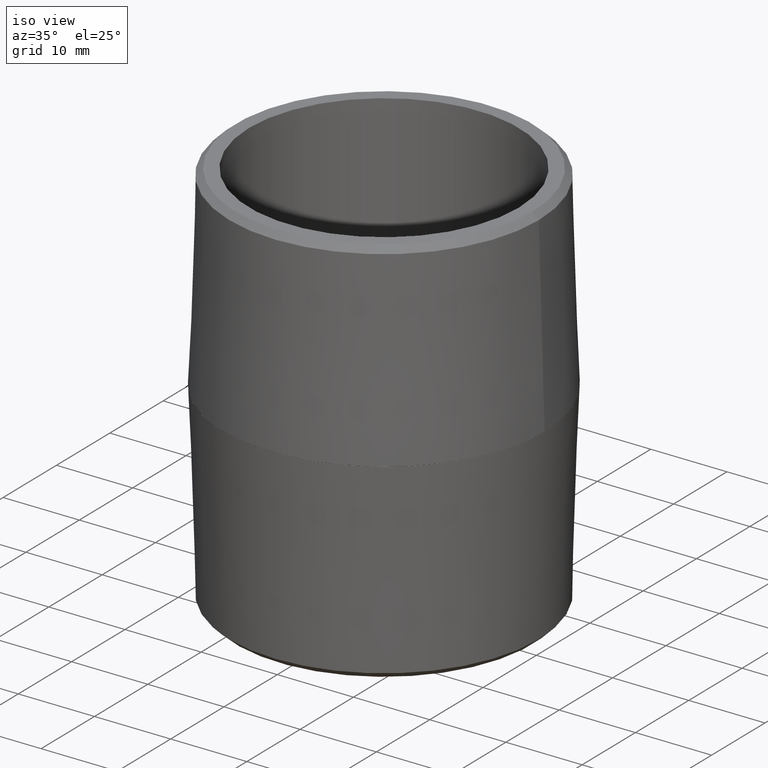
[diagram: clean part render]
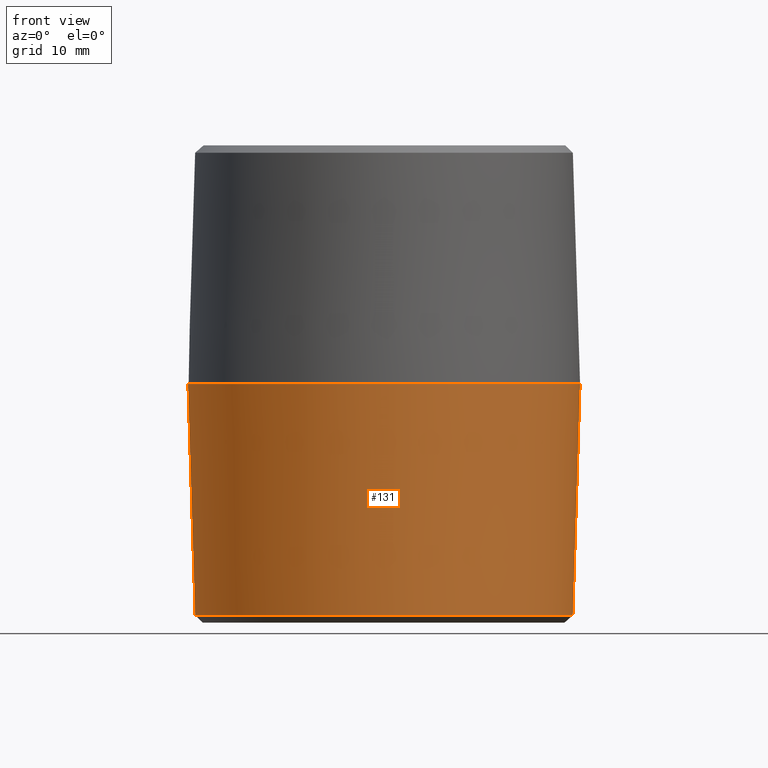
[diagram: tour spotlight — one face highlighted and labeled with its STEP entity id]
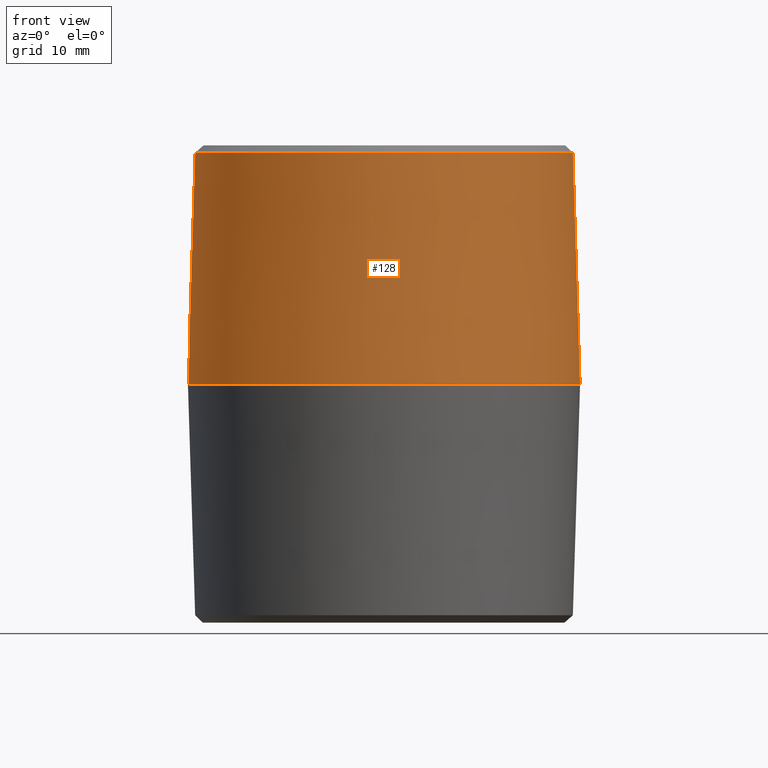
[diagram: tour spotlight — one face highlighted and labeled with its STEP entity id]
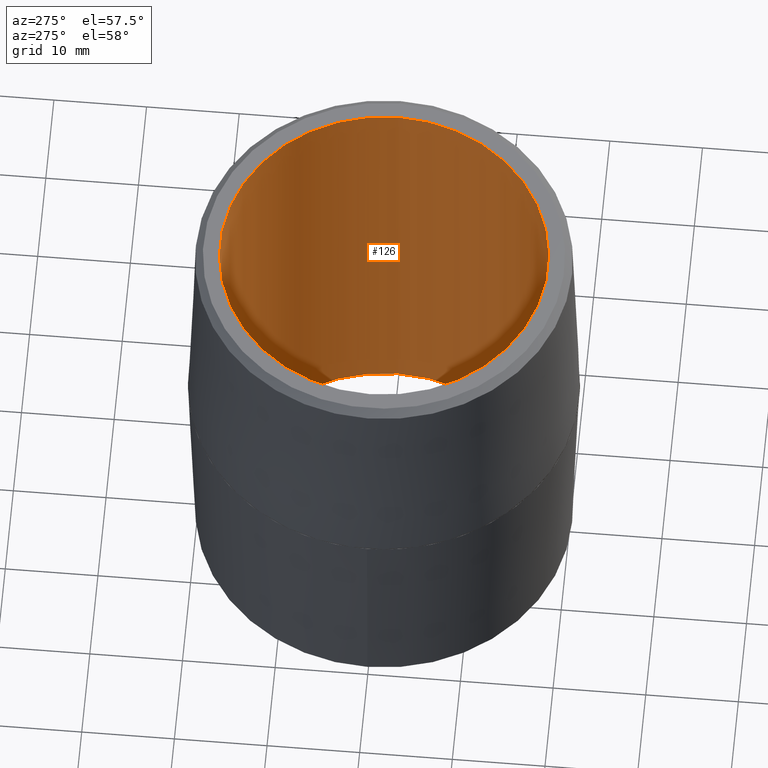
[diagram: tour spotlight — one face highlighted and labeled with its STEP entity id]
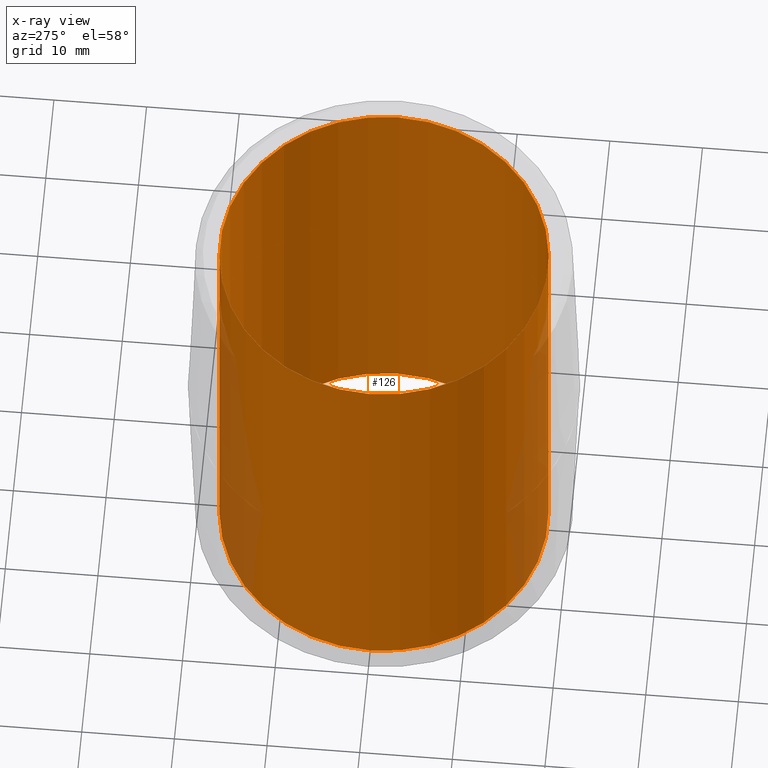
[diagram: x-ray of the same camera — body ghosted, this tour face saturated]
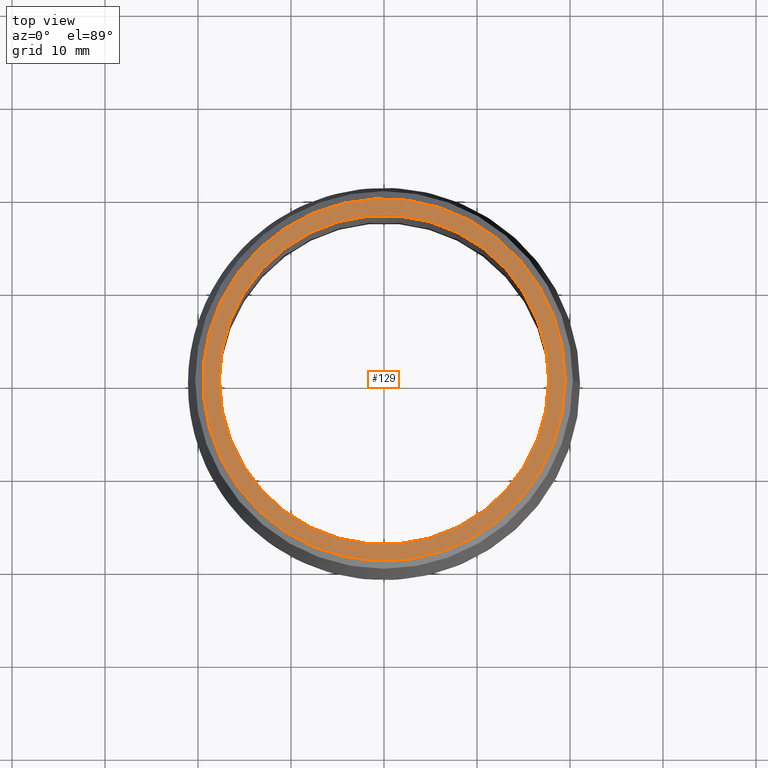
[diagram: tour spotlight — one face highlighted and labeled with its STEP entity id]
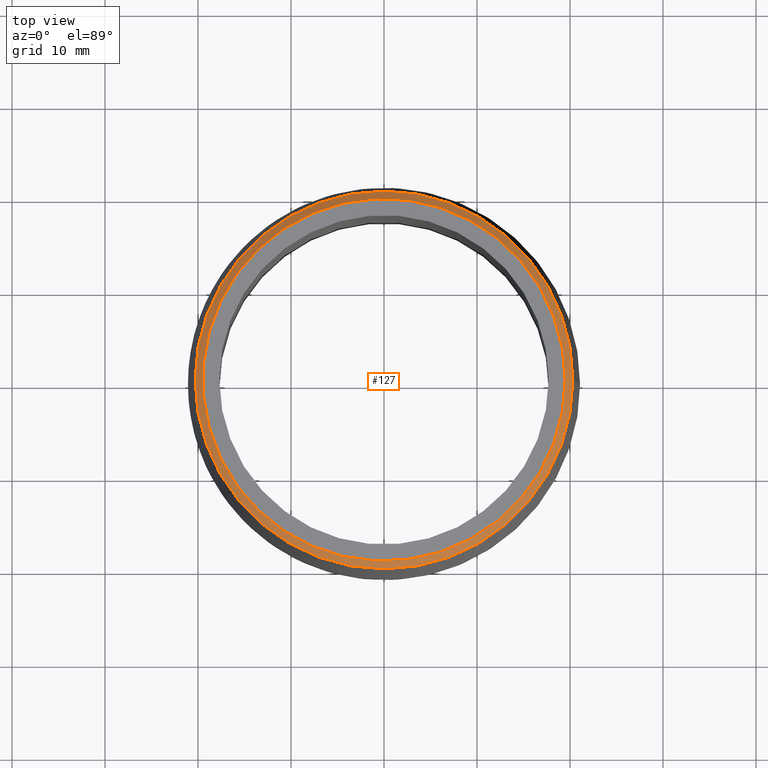
[diagram: tour spotlight — one face highlighted and labeled with its STEP entity id]
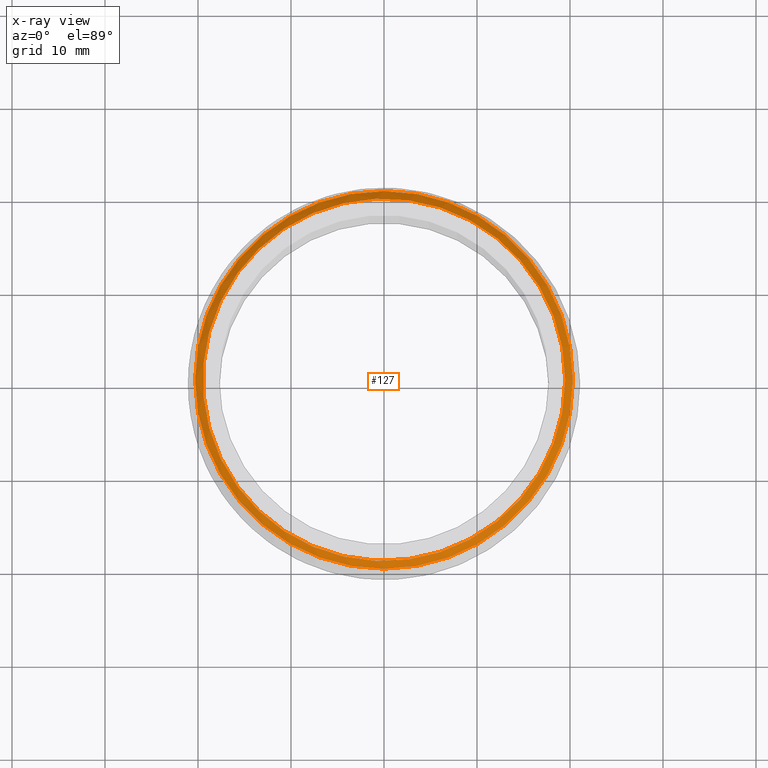
[diagram: x-ray of the same camera — body ghosted, this tour face saturated]
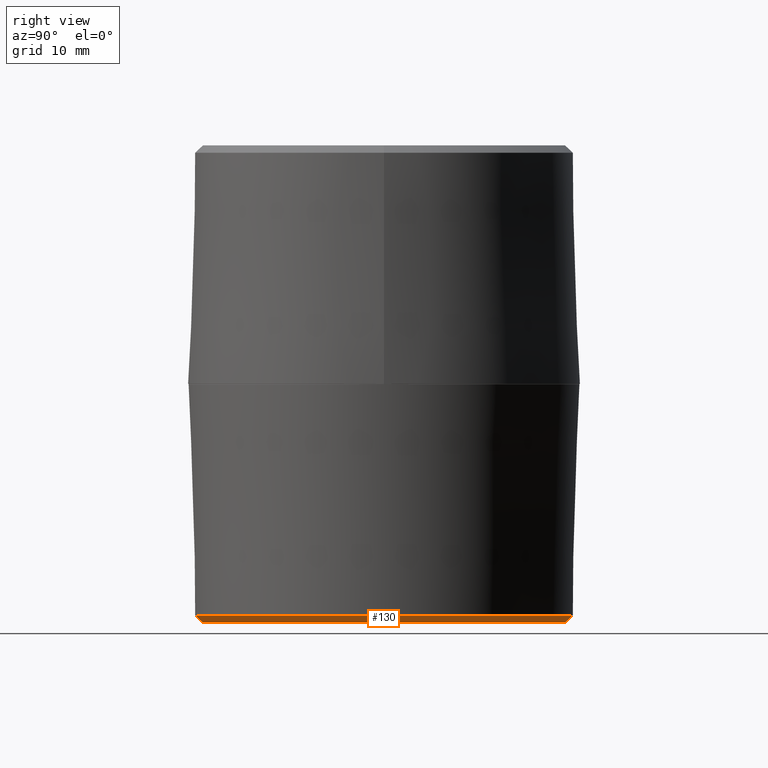
[diagram: tour spotlight — one face highlighted and labeled with its STEP entity id]
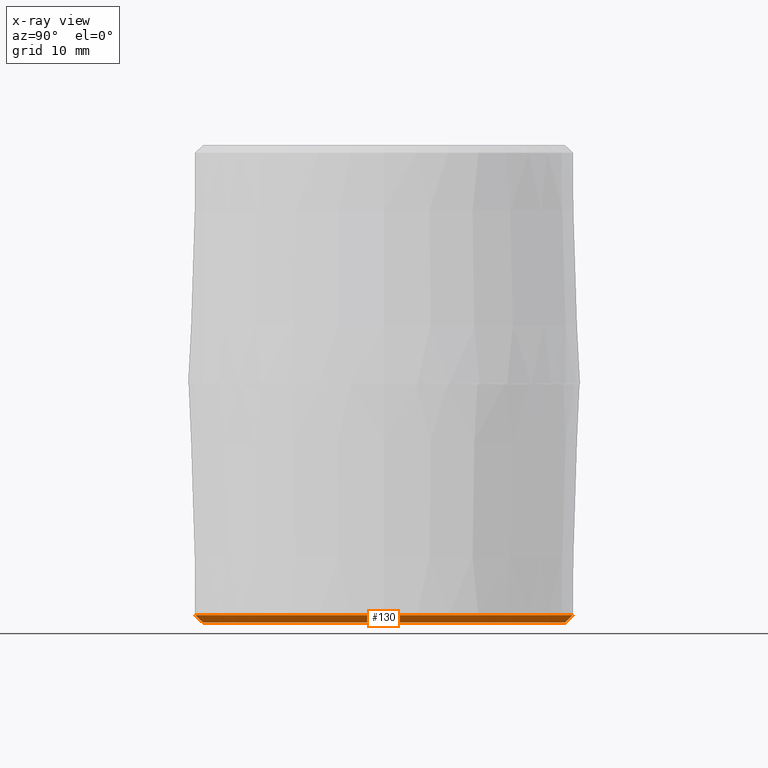
[diagram: x-ray of the same camera — body ghosted, this tour face saturated]
A machine part: a face-by-face anatomy tour. The part has 8 B-rep faces; the first image is the clean iso view, then the 6 largest visible faces are spotlighted one at a time (largest first), each with its STEP entity span.

Face 1 — front view, entity #131. In plain terms, the highlighted conical surface has half-angle 1.79 deg.
Definition (entity closure, byte-faithful):
#21=CONICAL_SURFACE('',#166,0.83,0.0312413936106985);
#27=FACE_OUTER_BOUND('',#36,.T.);
#36=EDGE_LOOP('',(#103,#104,#105,#106,#107));
#44=LINE('',#239,#50);
#50=VECTOR('',#203,0.83);
#57=CIRCLE('',#164,0.799427683203343);
#59=CIRCLE('',#167,0.83);
#60=CIRCLE('',#168,0.83);
#66=VERTEX_POINT('',#232);
#68=VERTEX_POINT('',#238);
#69=VERTEX_POINT('',#240);
#78=EDGE_CURVE('',#66,#66,#57,.T.);
#81=EDGE_CURVE('',#66,#68,#44,.T.);
#82=EDGE_CURVE('',#69,#68,#59,.T.);
#83=EDGE_CURVE('',#68,#69,#60,.T.);
#103=ORIENTED_EDGE('',*,*,#78,.F.);
#104=ORIENTED_EDGE('',*,*,#81,.T.);
#105=ORIENTED_EDGE('',*,*,#82,.F.);
#106=ORIENTED_EDGE('',*,*,#83,.F.);
#107=ORIENTED_EDGE('',*,*,#81,.F.);
#131=ADVANCED_FACE('',(#27),#21,.T.);
#164=AXIS2_PLACEMENT_3D('',#233,#196,#197);
#166=AXIS2_PLACEMENT_3D('',#237,#201,#202);
#167=AXIS2_PLACEMENT_3D('',#241,#204,#205);
#168=AXIS2_PLACEMENT_3D('',#242,#206,#207);
#196=DIRECTION('center_axis',(0.,0.,-1.));
#197=DIRECTION('ref_axis',(1.,-6.12303176911189E-17,0.));
#201=DIRECTION('center_axis',(0.,0.,1.));
#202=DIRECTION('ref_axis',(1.,0.,0.));
#203=DIRECTION('',(-0.0312363117968641,3.82534492591983E-18,0.999512027354013));
#204=DIRECTION('center_axis',(0.,0.,1.));
#205=DIRECTION('ref_axis',(-1.,0.,0.));
#206=DIRECTION('center_axis',(0.,0.,1.));
#207=DIRECTION('ref_axis',(-1.,0.,0.));
#232=CARTESIAN_POINT('',(-0.799427683203343,1.95796844054463E-16,-0.978765249145187));
#233=CARTESIAN_POINT('Origin',(0.,4.89492110136158E-17,-0.978765249145187));
#237=CARTESIAN_POINT('Origin',(0.,0.,-0.0005));
#238=CARTESIAN_POINT('',(-0.83,1.0164568432923E-16,-0.000499999999999997));
#239=CARTESIAN_POINT('',(-0.83,1.0164568432923E-16,-0.0005));
#240=CARTESIAN_POINT('',(0.83,1.0164568432923E-16,-0.0005));
#241=CARTESIAN_POINT('Origin',(0.,0.,-0.0005));
#242=CARTESIAN_POINT('Origin',(0.,0.,-0.0005));

Face 2 — front view, entity #128. In plain terms, the highlighted conical surface has half-angle 1.79 deg.
Definition (entity closure, byte-faithful):
#19=CONICAL_SURFACE('',#160,0.83,0.0312413936106985);
#24=FACE_OUTER_BOUND('',#32,.T.);
#32=EDGE_LOOP('',(#93,#94,#95,#96));
#42=LINE('',#228,#48);
#48=VECTOR('',#189,0.83);
#54=CIRCLE('',#158,0.799427683203343);
#56=CIRCLE('',#161,0.83);
#63=VERTEX_POINT('',#221);
#65=VERTEX_POINT('',#227);
#73=EDGE_CURVE('',#63,#63,#54,.T.);
#76=EDGE_CURVE('',#63,#65,#42,.T.);
#77=EDGE_CURVE('',#65,#65,#56,.T.);
#93=ORIENTED_EDGE('',*,*,#73,.F.);
#94=ORIENTED_EDGE('',*,*,#76,.T.);
#95=ORIENTED_EDGE('',*,*,#77,.F.);
#96=ORIENTED_EDGE('',*,*,#76,.F.);
#128=ADVANCED_FACE('',(#24),#19,.T.);
#158=AXIS2_PLACEMENT_3D('',#222,#182,#183);
#160=AXIS2_PLACEMENT_3D('',#226,#187,#188);
#161=AXIS2_PLACEMENT_3D('',#229,#190,#191);
#182=DIRECTION('center_axis',(0.,0.,1.));
#183=DIRECTION('ref_axis',(-1.,-6.12303176911189E-17,0.));
#187=DIRECTION('center_axis',(0.,0.,-1.));
#188=DIRECTION('ref_axis',(-1.,0.,0.));
#189=DIRECTION('',(0.0312363117968641,3.82534492591983E-18,-0.999512027354013));
#190=DIRECTION('center_axis',(0.,0.,-1.));
#191=DIRECTION('ref_axis',(-1.,0.,0.));
#221=CARTESIAN_POINT('',(0.799427683203343,1.95796844054463E-16,0.978765249145187));
#222=CARTESIAN_POINT('Origin',(0.,4.89492110136158E-17,0.978765249145187));
#226=CARTESIAN_POINT('Origin',(0.,0.,0.0005));
#227=CARTESIAN_POINT('',(0.83,1.0164568432923E-16,0.0005));
#228=CARTESIAN_POINT('',(0.83,1.0164568432923E-16,0.0005));
#229=CARTESIAN_POINT('Origin',(0.,0.,0.0005));

Face 3 — auxiliary view, entity #126. An x-ray twin of the same camera follows (body ghosted, this face saturated) — the face is partly hidden behind the body. In plain terms, the highlighted cylindrical surface (bore or boss wall) has radius 17.7038 mm, axis along (0, 0, -1).
Definition (entity closure, byte-faithful):
#22=FACE_OUTER_BOUND('',#30,.T.);
#30=EDGE_LOOP('',(#85,#86,#87,#88));
#40=LINE('',#218,#46);
#46=VECTOR('',#177,0.697);
#52=CIRCLE('',#155,0.697);
#53=CIRCLE('',#156,0.697);
#61=VERTEX_POINT('',#215);
#62=VERTEX_POINT('',#217);
#70=EDGE_CURVE('',#61,#61,#52,.T.);
#71=EDGE_CURVE('',#61,#62,#40,.T.);
#72=EDGE_CURVE('',#62,#62,#53,.T.);
#85=ORIENTED_EDGE('',*,*,#70,.F.);
#86=ORIENTED_EDGE('',*,*,#71,.T.);
#87=ORIENTED_EDGE('',*,*,#72,.F.);
#88=ORIENTED_EDGE('',*,*,#71,.F.);
#115=CYLINDRICAL_SURFACE('',#154,0.697);
#126=ADVANCED_FACE('',(#22),#115,.F.);
#154=AXIS2_PLACEMENT_3D('',#214,#173,#174);
#155=AXIS2_PLACEMENT_3D('',#216,#175,#176);
#156=AXIS2_PLACEMENT_3D('',#219,#178,#179);
#173=DIRECTION('center_axis',(0.,0.,-1.));
#174=DIRECTION('ref_axis',(-1.,0.,0.));
#175=DIRECTION('center_axis',(0.,0.,-1.));
#176=DIRECTION('ref_axis',(-1.,0.,0.));
#177=DIRECTION('',(0.,0.,-1.));
#178=DIRECTION('center_axis',(0.,0.,1.));
#179=DIRECTION('ref_axis',(-1.,0.,0.));
#214=CARTESIAN_POINT('Origin',(0.,0.,1.01));
#215=CARTESIAN_POINT('',(0.697,8.53578819005705E-17,1.01));
#216=CARTESIAN_POINT('Origin',(0.,0.,1.01));
#217=CARTESIAN_POINT('',(0.697,8.53550628614197E-17,-1.01));
#218=CARTESIAN_POINT('',(0.697,-8.53578819005705E-17,1.01));
#219=CARTESIAN_POINT('Origin',(0.,0.,-1.01));

Face 4 — top view, entity #129. In plain terms, the highlighted planar face has unit normal (0, 0, -1).
Definition (entity closure, byte-faithful):
#14=FACE_BOUND('',#34,.T.);
#16=PLANE('',#162);
#25=FACE_OUTER_BOUND('',#33,.T.);
#33=EDGE_LOOP('',(#97));
#34=EDGE_LOOP('',(#98));
#52=CIRCLE('',#155,0.697);
#55=CIRCLE('',#159,0.767201548459691);
#61=VERTEX_POINT('',#215);
#64=VERTEX_POINT('',#223);
#70=EDGE_CURVE('',#61,#61,#52,.T.);
#75=EDGE_CURVE('',#64,#64,#55,.T.);
#97=ORIENTED_EDGE('',*,*,#75,.F.);
#98=ORIENTED_EDGE('',*,*,#70,.T.);
#129=ADVANCED_FACE('',(#25,#14),#16,.F.);
#155=AXIS2_PLACEMENT_3D('',#216,#175,#176);
#159=AXIS2_PLACEMENT_3D('',#225,#185,#186);
#162=AXIS2_PLACEMENT_3D('',#230,#192,#193);
#175=DIRECTION('center_axis',(0.,0.,-1.));
#176=DIRECTION('ref_axis',(-1.,0.,0.));
#185=DIRECTION('center_axis',(0.,0.,-1.));
#186=DIRECTION('ref_axis',(-1.,0.,0.));
#192=DIRECTION('center_axis',(0.,0.,-1.));
#193=DIRECTION('ref_axis',(-1.,0.,0.));
#215=CARTESIAN_POINT('',(0.697,8.53578819005705E-17,1.01));
#216=CARTESIAN_POINT('Origin',(0.,0.,1.01));
#223=CARTESIAN_POINT('',(0.767201548459691,-9.39519890906104E-17,1.01));
#225=CARTESIAN_POINT('Origin',(0.,0.,1.01));
#230=CARTESIAN_POINT('Origin',(0.,0.,1.01));

Face 5 — top view, entity #127. An x-ray twin of the same camera follows (body ghosted, this face saturated) — the face is partly hidden behind the body. In plain terms, the highlighted conical surface has half-angle 45.895 deg.
Definition (entity closure, byte-faithful):
#18=CONICAL_SURFACE('',#157,0.783314615831517,0.801018860202794);
#23=FACE_OUTER_BOUND('',#31,.T.);
#31=EDGE_LOOP('',(#89,#90,#91,#92));
#41=LINE('',#224,#47);
#47=VECTOR('',#184,0.783314615831517);
#54=CIRCLE('',#158,0.799427683203343);
#55=CIRCLE('',#159,0.767201548459691);
#63=VERTEX_POINT('',#221);
#64=VERTEX_POINT('',#223);
#73=EDGE_CURVE('',#63,#63,#54,.T.);
#74=EDGE_CURVE('',#63,#64,#41,.T.);
#75=EDGE_CURVE('',#64,#64,#55,.T.);
#89=ORIENTED_EDGE('',*,*,#73,.T.);
#90=ORIENTED_EDGE('',*,*,#74,.T.);
#91=ORIENTED_EDGE('',*,*,#75,.T.);
#92=ORIENTED_EDGE('',*,*,#74,.F.);
#127=ADVANCED_FACE('',(#23),#18,.T.);
#157=AXIS2_PLACEMENT_3D('',#220,#180,#181);
#158=AXIS2_PLACEMENT_3D('',#222,#182,#183);
#159=AXIS2_PLACEMENT_3D('',#225,#185,#186);
#180=DIRECTION('center_axis',(0.,1.56713947363128E-15,-1.));
#181=DIRECTION('ref_axis',(-1.,-3.12449238302891E-17,0.));
#182=DIRECTION('center_axis',(0.,0.,1.));
#183=DIRECTION('ref_axis',(-1.,-6.12303176911189E-17,0.));
#184=DIRECTION('',(-0.718065565180805,-1.02518885391576E-15,0.695975462284103));
#185=DIRECTION('center_axis',(0.,0.,-1.));
#186=DIRECTION('ref_axis',(-1.,0.,0.));
#220=CARTESIAN_POINT('Origin',(0.,2.44746055068079E-17,0.994382624572593));
#221=CARTESIAN_POINT('',(0.799427683203343,1.95796844054463E-16,0.978765249145187));
#222=CARTESIAN_POINT('Origin',(0.,4.89492110136158E-17,0.978765249145187));
#223=CARTESIAN_POINT('',(0.767201548459691,-9.39519890906104E-17,1.01));
#224=CARTESIAN_POINT('',(0.783314615831517,-4.69791626867248E-17,0.994382624572593));
#225=CARTESIAN_POINT('Origin',(0.,0.,1.01));

Face 6 — right view, entity #130. An x-ray twin of the same camera follows (body ghosted, this face saturated) — the face is partly hidden behind the body. In plain terms, the highlighted conical surface has half-angle 45.895 deg.
Definition (entity closure, byte-faithful):
#20=CONICAL_SURFACE('',#163,0.783314615831517,0.801018860202794);
#26=FACE_OUTER_BOUND('',#35,.T.);
#35=EDGE_LOOP('',(#99,#100,#101,#102));
#43=LINE('',#235,#49);
#49=VECTOR('',#198,0.783314615831517);
#57=CIRCLE('',#164,0.799427683203343);
#58=CIRCLE('',#165,0.767201548459691);
#66=VERTEX_POINT('',#232);
#67=VERTEX_POINT('',#234);
#78=EDGE_CURVE('',#66,#66,#57,.T.);
#79=EDGE_CURVE('',#66,#67,#43,.T.);
#80=EDGE_CURVE('',#67,#67,#58,.T.);
#99=ORIENTED_EDGE('',*,*,#78,.T.);
#100=ORIENTED_EDGE('',*,*,#79,.T.);
#101=ORIENTED_EDGE('',*,*,#80,.T.);
#102=ORIENTED_EDGE('',*,*,#79,.F.);
#130=ADVANCED_FACE('',(#26),#20,.T.);
#163=AXIS2_PLACEMENT_3D('',#231,#194,#195);
#164=AXIS2_PLACEMENT_3D('',#233,#196,#197);
#165=AXIS2_PLACEMENT_3D('',#236,#199,#200);
#194=DIRECTION('center_axis',(0.,1.56713947363128E-15,1.));
#195=DIRECTION('ref_axis',(1.,-3.12449238302891E-17,0.));
#196=DIRECTION('center_axis',(0.,0.,-1.));
#197=DIRECTION('ref_axis',(1.,-6.12303176911189E-17,0.));
#198=DIRECTION('',(0.718065565180805,-1.02518885391576E-15,-0.695975462284103));
#199=DIRECTION('center_axis',(0.,0.,1.));
#200=DIRECTION('ref_axis',(1.,0.,0.));
#231=CARTESIAN_POINT('Origin',(0.,2.44746055068079E-17,-0.994382624572593));
#232=CARTESIAN_POINT('',(-0.799427683203343,1.95796844054463E-16,-0.978765249145187));
#233=CARTESIAN_POINT('Origin',(0.,4.89492110136158E-17,-0.978765249145187));
#234=CARTESIAN_POINT('',(-0.767201548459691,-9.39519890906104E-17,-1.01));
#235=CARTESIAN_POINT('',(-0.783314615831517,-4.69791626867248E-17,-0.994382624572593));
#236=CARTESIAN_POINT('Origin',(0.,0.,-1.01));